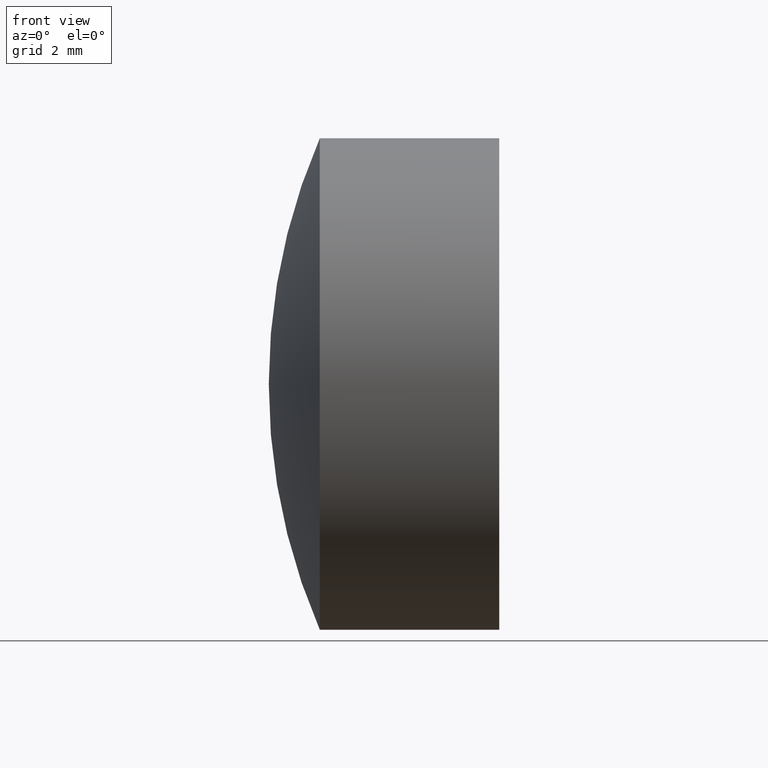
[diagram: clean part render]
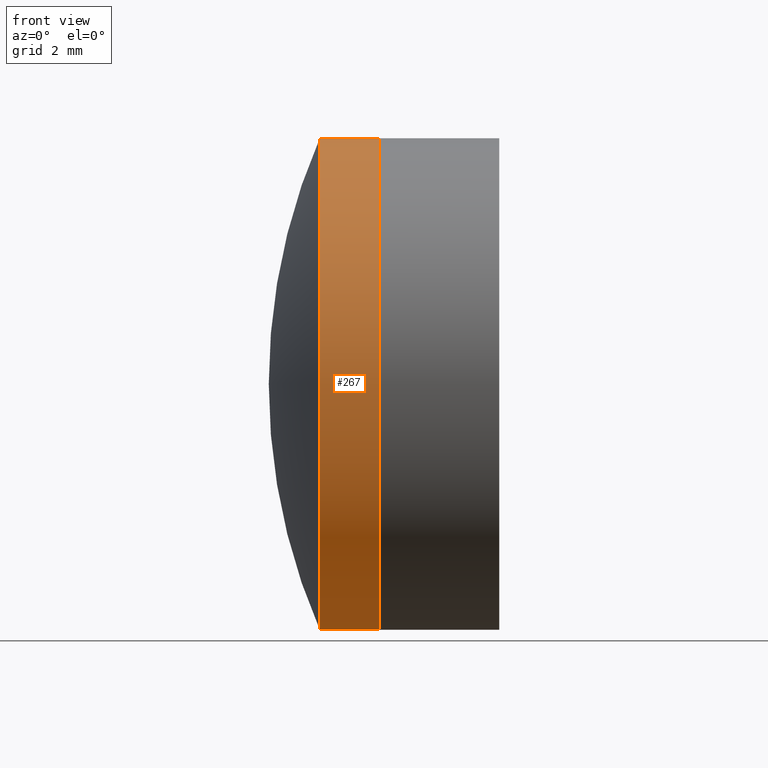
[diagram: same view with one face highlighted and labeled with its STEP entity id]
A machine part, front view. The second image highlights one B-rep face of the part: STEP entity #267.
In plain terms, the highlighted cylindrical surface (partial cylindrical patch) has radius 6.35 mm, axis along (-1, -0, -0).
Its self-contained STEP definition (entity closure, byte-faithful):
#14 = ORIENTED_EDGE ( 'NONE', *, *, #299, .F. ) ;
#19 = CIRCLE ( 'NONE', #121, 6.350000000000005900 ) ;
#21 = DIRECTION ( 'NONE',  ( 0.0000000000000000000, 0.0000000000000000000, 1.000000000000000000 ) ) ;
#24 = LINE ( 'NONE', #156, #318 ) ;
#27 = ORIENTED_EDGE ( 'NONE', *, *, #242, .T. ) ;
#60 = CARTESIAN_POINT ( 'NONE',  ( 28.74217880449237900, 0.0000000000000000000, 0.0000000000000000000 ) ) ;
#72 = AXIS2_PLACEMENT_3D ( 'NONE', #60, #249, #127 ) ;
#89 = DIRECTION ( 'NONE',  ( -1.000000000000000000, -0.0000000000000000000, -0.0000000000000000000 ) ) ;
#96 = CARTESIAN_POINT ( 'NONE',  ( 28.74217880449237900, 7.776507174585701000E-016, -6.350000000000006800 ) ) ;
#97 = FACE_OUTER_BOUND ( 'NONE', #309, .T. ) ;
#113 = CARTESIAN_POINT ( 'NONE',  ( -0.8160621761658039000, 0.0000000000000000000, 0.0000000000000000000 ) ) ;
#121 = AXIS2_PLACEMENT_3D ( 'NONE', #251, #89, #337 ) ;
#127 = DIRECTION ( 'NONE',  ( 0.0000000000000000000, 0.0000000000000000000, 1.000000000000000000 ) ) ;
#132 = EDGE_CURVE ( 'NONE', #327, #213, #330, .T. ) ;
#135 = CYLINDRICAL_SURFACE ( 'NONE', #262, 6.350000000000006800 ) ;
#156 = CARTESIAN_POINT ( 'NONE',  ( -0.8160621761658039000, 7.776507174585701000E-016, -6.350000000000006800 ) ) ;
#159 = ORIENTED_EDGE ( 'NONE', *, *, #216, .F. ) ;
#174 = DIRECTION ( 'NONE',  ( -1.000000000000000000, -0.0000000000000000000, -0.0000000000000000000 ) ) ;
#178 = DIRECTION ( 'NONE',  ( -1.000000000000000000, -0.0000000000000000000, -0.0000000000000000000 ) ) ;
#210 = CARTESIAN_POINT ( 'NONE',  ( 27.19049754587739900, 0.0000000000000000000, -6.350000000000000500 ) ) ;
#212 = VERTEX_POINT ( 'NONE', #210 ) ;
#213 = VERTEX_POINT ( 'NONE', #290 ) ;
#216 = EDGE_CURVE ( 'NONE', #241, #212, #24, .T. ) ;
#225 = DIRECTION ( 'NONE',  ( -1.000000000000000000, -0.0000000000000000000, -0.0000000000000000000 ) ) ;
#236 = CIRCLE ( 'NONE', #72, 6.350000000000006800 ) ;
#241 = VERTEX_POINT ( 'NONE', #96 ) ;
#242 = EDGE_CURVE ( 'NONE', #241, #327, #236, .T. ) ;
#249 = DIRECTION ( 'NONE',  ( -1.000000000000000000, -0.0000000000000000000, -0.0000000000000000000 ) ) ;
#251 = CARTESIAN_POINT ( 'NONE',  ( 27.19049754587739500, 0.0000000000000000000, 0.0000000000000000000 ) ) ;
#257 = VECTOR ( 'NONE', #178, 1000.000000000000000 ) ;
#262 = AXIS2_PLACEMENT_3D ( 'NONE', #113, #225, #21 ) ;
#263 = ORIENTED_EDGE ( 'NONE', *, *, #132, .T. ) ;
#267 = ADVANCED_FACE ( 'NONE', ( #97 ), #135, .T. ) ;
#283 = CARTESIAN_POINT ( 'NONE',  ( -0.8160621761658039000, 0.0000000000000000000, 6.350000000000006800 ) ) ;
#290 = CARTESIAN_POINT ( 'NONE',  ( 27.19049754587739900, -7.776507174585694100E-016, 6.350000000000011200 ) ) ;
#299 = EDGE_CURVE ( 'NONE', #212, #213, #19, .T. ) ;
#309 = EDGE_LOOP ( 'NONE', ( #159, #27, #263, #14 ) ) ;
#314 = CARTESIAN_POINT ( 'NONE',  ( 28.74217880449237900, 0.0000000000000000000, 6.350000000000006800 ) ) ;
#318 = VECTOR ( 'NONE', #174, 1000.000000000000000 ) ;
#327 = VERTEX_POINT ( 'NONE', #314 ) ;
#330 = LINE ( 'NONE', #283, #257 ) ;
#337 = DIRECTION ( 'NONE',  ( 0.0000000000000000000, 0.0000000000000000000, 1.000000000000000000 ) ) ;